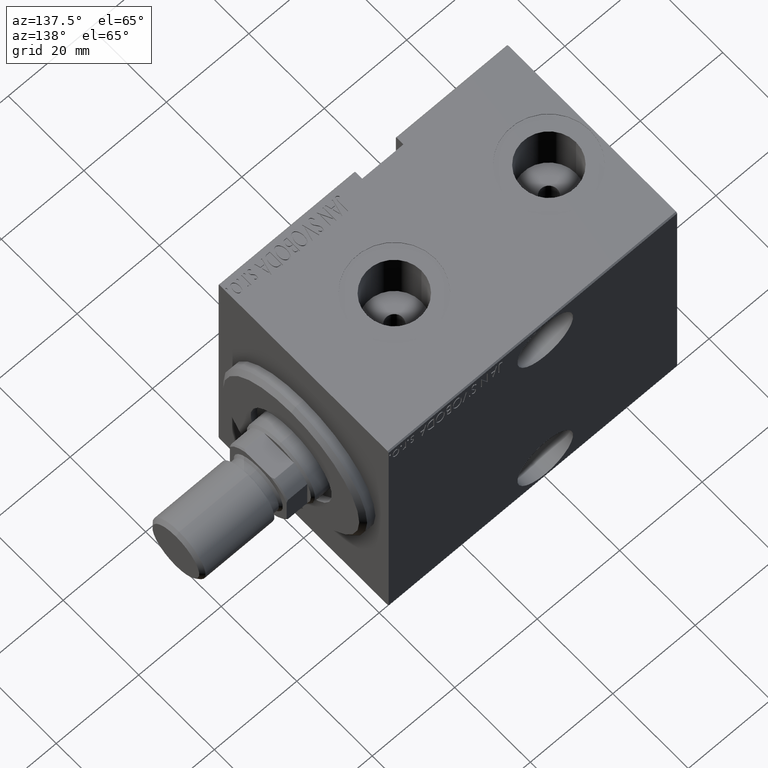
[diagram: clean part render]
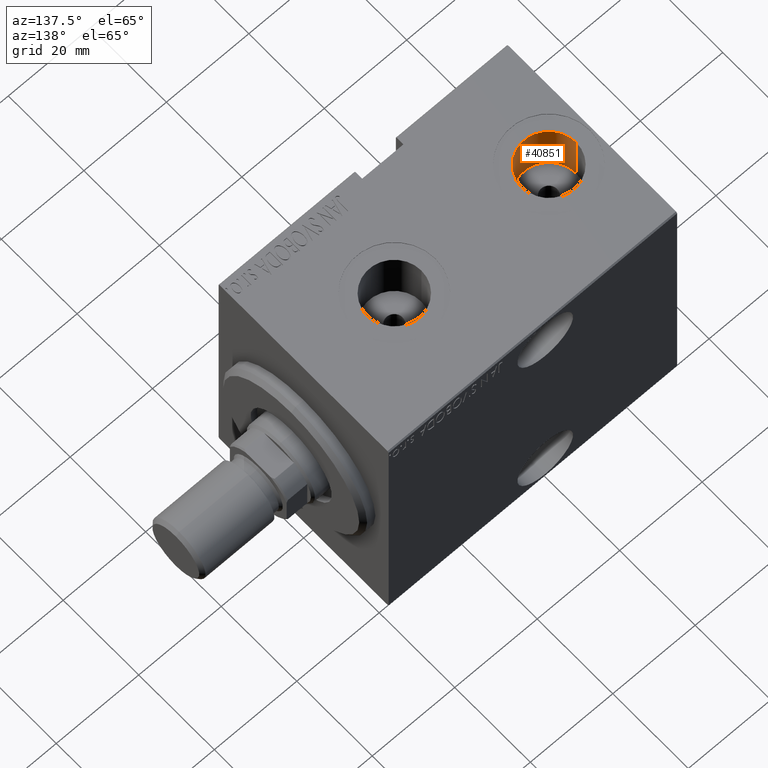
[diagram: same view with one face highlighted and labeled with its STEP entity id]
A machine part, auxiliary view. The second image highlights one B-rep face of the part: STEP entity #40851.
In plain terms, the highlighted cylindrical surface (partial cylindrical patch) has radius 6.58 mm, axis along (0, 0, 1).
Its self-contained STEP definition (entity closure, byte-faithful):
#545 = VECTOR ( 'NONE', #23512, 1000.000000000000000 ) ;
#1816 = CARTESIAN_POINT ( 'NONE',  ( 52.92000000000000881, -4.205605781205153147E-15, 19.23999999999999844 ) ) ;
#4755 = VERTEX_POINT ( 'NONE', #22608 ) ;
#4772 = EDGE_CURVE ( 'NONE', #4755, #9078, #9770, .T. ) ;
#5413 = EDGE_LOOP ( 'NONE', ( #32533, #26465, #33879, #37178 ) ) ;
#5609 = CARTESIAN_POINT ( 'NONE',  ( 59.50000000000000711, -5.011423375044110611E-15, 19.23999999999999844 ) ) ;
#5943 = DIRECTION ( 'NONE',  ( -0.000000000000000000, -0.000000000000000000, 1.000000000000000000 ) ) ;
#7650 = CARTESIAN_POINT ( 'NONE',  ( 66.07999999999999829, -5.011423375044110611E-15, 32.39999999999999858 ) ) ;
#8064 = CYLINDRICAL_SURFACE ( 'NONE', #29363, 6.579999999999995630 ) ;
#8201 = AXIS2_PLACEMENT_3D ( 'NONE', #18095, #44319, #17659 ) ;
#9078 = VERTEX_POINT ( 'NONE', #7650 ) ;
#9569 = VERTEX_POINT ( 'NONE', #15078 ) ;
#9770 = LINE ( 'NONE', #17206, #545 ) ;
#11264 = VERTEX_POINT ( 'NONE', #1816 ) ;
#12115 = FACE_OUTER_BOUND ( 'NONE', #5413, .T. ) ;
#15078 = CARTESIAN_POINT ( 'NONE',  ( 52.92000000000000881, -4.205605781205153147E-15, 32.39999999999999858 ) ) ;
#16211 = DIRECTION ( 'NONE',  ( 1.000000000000000000, 0.000000000000000000, 0.000000000000000000 ) ) ;
#16319 = LINE ( 'NONE', #41327, #34412 ) ;
#16853 = CIRCLE ( 'NONE', #31221, 6.579999999999995630 ) ;
#17206 = CARTESIAN_POINT ( 'NONE',  ( 66.07999999999999829, -5.011423375044110611E-15, 19.23999999999999844 ) ) ;
#17659 = DIRECTION ( 'NONE',  ( 1.000000000000000000, 0.000000000000000000, 0.000000000000000000 ) ) ;
#18095 = CARTESIAN_POINT ( 'NONE',  ( 59.50000000000000711, -5.011423375044110611E-15, 32.39999999999999858 ) ) ;
#22608 = CARTESIAN_POINT ( 'NONE',  ( 66.07999999999999829, -5.011423375044110611E-15, 19.23999999999999844 ) ) ;
#23512 = DIRECTION ( 'NONE',  ( -0.000000000000000000, -0.000000000000000000, 1.000000000000000000 ) ) ;
#24766 = CIRCLE ( 'NONE', #8201, 6.579999999999995630 ) ;
#25244 = EDGE_CURVE ( 'NONE', #4755, #11264, #16853, .T. ) ;
#25679 = EDGE_CURVE ( 'NONE', #9078, #9569, #24766, .T. ) ;
#25835 = DIRECTION ( 'NONE',  ( -0.000000000000000000, -0.000000000000000000, 1.000000000000000000 ) ) ;
#26465 = ORIENTED_EDGE ( 'NONE', *, *, #25244, .F. ) ;
#28781 = CARTESIAN_POINT ( 'NONE',  ( 59.50000000000000711, -5.011423375044110611E-15, 19.23999999999999844 ) ) ;
#29363 = AXIS2_PLACEMENT_3D ( 'NONE', #28781, #25835, #39593 ) ;
#31221 = AXIS2_PLACEMENT_3D ( 'NONE', #5609, #40766, #16211 ) ;
#32533 = ORIENTED_EDGE ( 'NONE', *, *, #39393, .F. ) ;
#33879 = ORIENTED_EDGE ( 'NONE', *, *, #4772, .T. ) ;
#34412 = VECTOR ( 'NONE', #5943, 1000.000000000000000 ) ;
#37178 = ORIENTED_EDGE ( 'NONE', *, *, #25679, .T. ) ;
#39393 = EDGE_CURVE ( 'NONE', #11264, #9569, #16319, .T. ) ;
#39593 = DIRECTION ( 'NONE',  ( 1.000000000000000000, 0.000000000000000000, 0.000000000000000000 ) ) ;
#40766 = DIRECTION ( 'NONE',  ( 0.000000000000000000, 0.000000000000000000, 1.000000000000000000 ) ) ;
#40851 = ADVANCED_FACE ( 'NONE', ( #12115 ), #8064, .F. ) ;
#41327 = CARTESIAN_POINT ( 'NONE',  ( 52.92000000000000881, -4.205605781205153147E-15, 19.23999999999999844 ) ) ;
#44319 = DIRECTION ( 'NONE',  ( 0.000000000000000000, 0.000000000000000000, 1.000000000000000000 ) ) ;